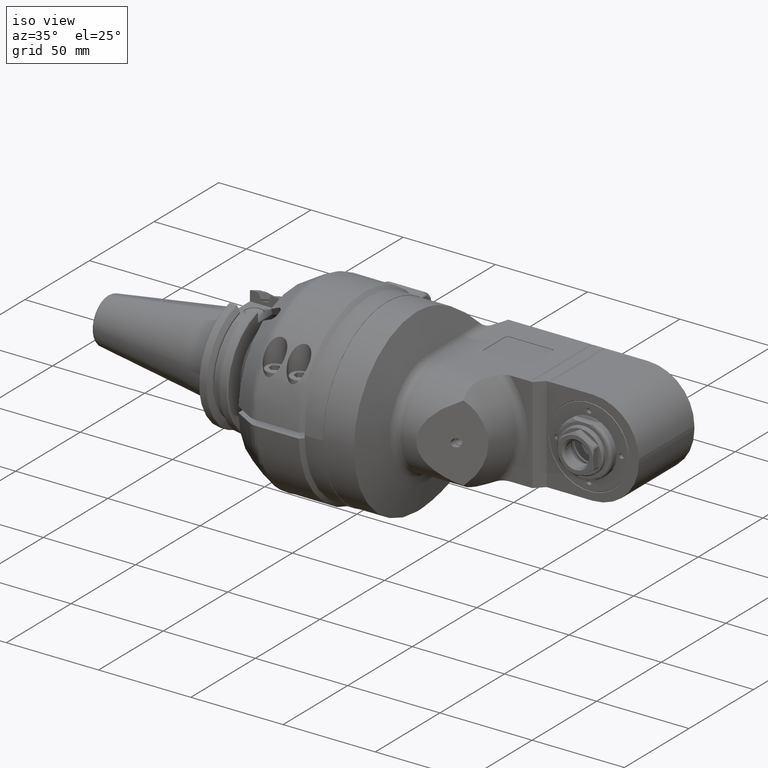
[diagram: clean part render]
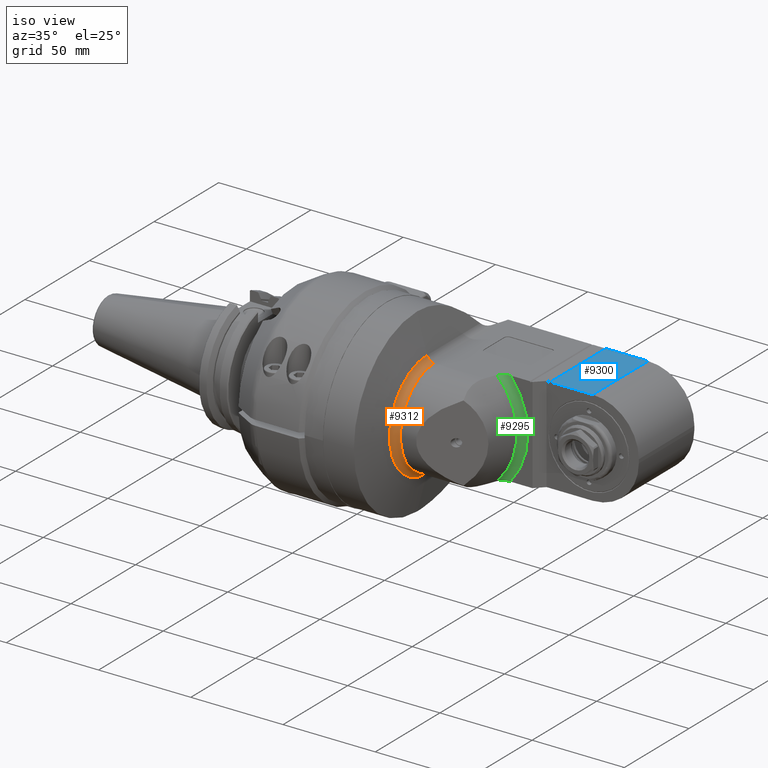
[diagram: same view with three faces highlighted in distinct colors, each labeled with its STEP entity id]
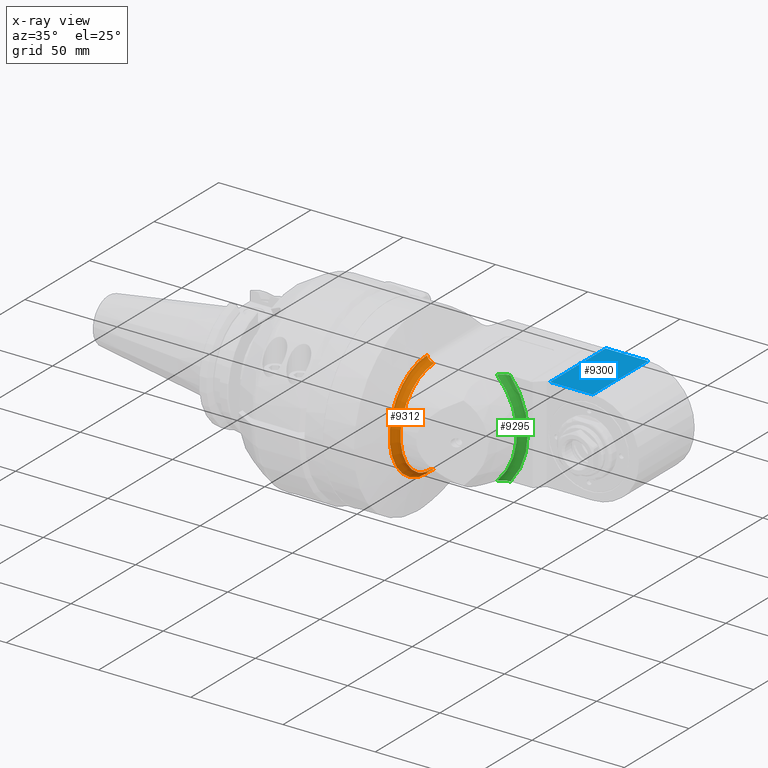
[diagram: x-ray of the same camera — body ghosted, the three highlighted faces saturated]
A machine part, iso view with three faces highlighted in distinct colors.
The next image is the same camera in x-ray (body ghosted, the three faces saturated) — at least one of them is partly hidden behind the body in this view.
Their STEP definitions:

[orange] entity #9312 — the highlighted toroidal blend (fillet) surface has major radius 30 mm and minor (blend) radius 4 mm.
#165=TOROIDAL_SURFACE('',#10166,30.,4.);
#531=CIRCLE('',#10164,26.);
#532=CIRCLE('',#10167,4.);
#533=CIRCLE('',#10168,28.96472381959);
#534=CIRCLE('',#10169,4.);
#1258=FACE_OUTER_BOUND('',#1844,.T.);
#1844=EDGE_LOOP('',(#6430,#6431,#6432,#6433));
#3932=VERTEX_POINT('',#14292);
#3969=VERTEX_POINT('',#14405);
#3981=VERTEX_POINT('',#14461);
#3982=VERTEX_POINT('',#14463);
#4928=EDGE_CURVE('',#3932,#3969,#531,.T.);
#4930=EDGE_CURVE('',#3969,#3981,#532,.T.);
#4931=EDGE_CURVE('',#3981,#3982,#533,.T.);
#4932=EDGE_CURVE('',#3982,#3932,#534,.T.);
#6430=ORIENTED_EDGE('',*,*,#4928,.T.);
#6431=ORIENTED_EDGE('',*,*,#4930,.T.);
#6432=ORIENTED_EDGE('',*,*,#4931,.T.);
#6433=ORIENTED_EDGE('',*,*,#4932,.T.);
#9312=ADVANCED_FACE('',(#1258),#165,.F.);
#10164=AXIS2_PLACEMENT_3D('',#14458,#11488,#11489);
#10166=AXIS2_PLACEMENT_3D('',#14460,#11492,#11493);
#10167=AXIS2_PLACEMENT_3D('',#14462,#11494,#11495);
#10168=AXIS2_PLACEMENT_3D('',#14464,#11496,#11497);
#10169=AXIS2_PLACEMENT_3D('',#14465,#11498,#11499);
#11488=DIRECTION('center_axis',(-1.,0.,0.));
#11489=DIRECTION('ref_axis',(0.,-1.,0.));
#11492=DIRECTION('center_axis',(-1.,0.,0.));
#11493=DIRECTION('ref_axis',(0.,-1.,-1.22464679914735E-16));
#11494=DIRECTION('center_axis',(0.,1.,0.));
#11495=DIRECTION('ref_axis',(0.,0.,-1.));
#11496=DIRECTION('center_axis',(1.,0.,0.));
#11497=DIRECTION('ref_axis',(0.,0.,1.));
#11498=DIRECTION('center_axis',(0.,1.,0.));
#11499=DIRECTION('ref_axis',(-0.965925826289076,0.,0.258819045102493));
#14292=CARTESIAN_POINT('',(24.00000019522,0.,-26.));
#14405=CARTESIAN_POINT('',(24.00000019522,0.,26.));
#14458=CARTESIAN_POINT('Origin',(24.00000019522,0.,0.));
#14460=CARTESIAN_POINT('Origin',(24.00000019522,0.,0.));
#14461=CARTESIAN_POINT('',(20.13629689006,0.,28.96472381959));
#14462=CARTESIAN_POINT('Origin',(24.00000019522,-3.215626318717E-14,30.));
#14463=CARTESIAN_POINT('',(20.13629689006,0.,-28.96472381959));
#14464=CARTESIAN_POINT('Origin',(20.13629689006,0.,0.));
#14465=CARTESIAN_POINT('Origin',(24.00000019522,0.,-30.));

[blue] entity #9300 — the highlighted planar face has unit normal (0, 0, -1).
#973=PLANE('',#10141);
#1246=FACE_OUTER_BOUND('',#1830,.T.);
#1830=EDGE_LOOP('',(#6346,#6347,#6348,#6349));
#2598=LINE('',#14225,#3237);
#2621=LINE('',#14330,#3260);
#2622=LINE('',#14333,#3261);
#2623=LINE('',#14334,#3262);
#3237=VECTOR('',#11360,23.);
#3260=VECTOR('',#11415,43.);
#3261=VECTOR('',#11418,23.);
#3262=VECTOR('',#11419,43.);
#3917=VERTEX_POINT('',#14222);
#3918=VERTEX_POINT('',#14224);
#3946=VERTEX_POINT('',#14328);
#3947=VERTEX_POINT('',#14332);
#4845=EDGE_CURVE('',#3917,#3918,#2598,.T.);
#4881=EDGE_CURVE('',#3946,#3917,#2621,.T.);
#4882=EDGE_CURVE('',#3946,#3947,#2622,.T.);
#4883=EDGE_CURVE('',#3918,#3947,#2623,.T.);
#6346=ORIENTED_EDGE('',*,*,#4881,.F.);
#6347=ORIENTED_EDGE('',*,*,#4882,.T.);
#6348=ORIENTED_EDGE('',*,*,#4883,.F.);
#6349=ORIENTED_EDGE('',*,*,#4845,.F.);
#9300=ADVANCED_FACE('',(#1246),#973,.F.);
#10141=AXIS2_PLACEMENT_3D('',#14331,#11416,#11417);
#11360=DIRECTION('',(-1.,0.,0.));
#11415=DIRECTION('',(0.,-1.,0.));
#11416=DIRECTION('center_axis',(0.,0.,-1.));
#11417=DIRECTION('ref_axis',(1.,0.,0.));
#11418=DIRECTION('',(-1.,0.,0.));
#11419=DIRECTION('',(0.,1.,0.));
#14222=CARTESIAN_POINT('',(100.5,13.5,26.));
#14224=CARTESIAN_POINT('',(77.5,13.5,26.));
#14225=CARTESIAN_POINT('',(100.5,13.5,26.));
#14328=CARTESIAN_POINT('',(100.5,56.5,26.));
#14330=CARTESIAN_POINT('',(100.5,56.5,26.));
#14331=CARTESIAN_POINT('Origin',(20.7320512433,-59.7040024,26.));
#14332=CARTESIAN_POINT('',(77.5,56.5,26.));
#14333=CARTESIAN_POINT('',(100.5,56.5,26.));
#14334=CARTESIAN_POINT('',(77.5,13.5,26.));

[green] entity #9295 — the highlighted toroidal blend (fillet) surface has major radius 40.5 mm and minor (blend) radius 4 mm.
#72=B_SPLINE_CURVE_WITH_KNOTS('',3,(#14251,#14252,#14253,#14254,#14255,
#14256,#14257,#14258,#14259,#14260,#14261,#14262,#14263,#14264,#14265,#14266),
 .UNSPECIFIED.,.F.,.F.,(4,2,2,2,2,2,2,4),(-1.27557197889434,-1.24195141155016,
-1.16156772126569,-1.08118403098121,-0.984533971774266,-0.887883912567323,
-0.781258268734826,-0.674632624902328),.UNSPECIFIED.);
#73=B_SPLINE_CURVE_WITH_KNOTS('',3,(#14269,#14270,#14271,#14272,#14273,
#14274,#14275,#14276,#14277,#14278,#14279,#14280,#14281,#14282,#14283,#14284),
 .UNSPECIFIED.,.F.,.F.,(4,2,2,2,2,2,2,4),(0.674632624902328,0.781258268734826,
0.887883912567323,0.984533971774266,1.08118403098121,1.16156772126569,1.24195141155016,
1.27557197889588),.UNSPECIFIED.);
#164=TOROIDAL_SURFACE('',#10128,40.49999997084,4.);
#512=CIRCLE('',#10127,40.49999997084);
#513=CIRCLE('',#10129,36.63629666568);
#1241=FACE_OUTER_BOUND('',#1823,.T.);
#1823=EDGE_LOOP('',(#6311,#6312,#6313,#6314));
#3923=VERTEX_POINT('',#14238);
#3924=VERTEX_POINT('',#14239);
#3928=VERTEX_POINT('',#14250);
#3929=VERTEX_POINT('',#14267);
#4852=EDGE_CURVE('',#3923,#3924,#512,.T.);
#4858=EDGE_CURVE('',#3928,#3923,#72,.T.);
#4859=EDGE_CURVE('',#3928,#3929,#513,.T.);
#4860=EDGE_CURVE('',#3924,#3929,#73,.T.);
#6311=ORIENTED_EDGE('',*,*,#4852,.F.);
#6312=ORIENTED_EDGE('',*,*,#4858,.F.);
#6313=ORIENTED_EDGE('',*,*,#4859,.T.);
#6314=ORIENTED_EDGE('',*,*,#4860,.F.);
#9295=ADVANCED_FACE('',(#1241),#164,.F.);
#10127=AXIS2_PLACEMENT_3D('',#14240,#11371,#11372);
#10128=AXIS2_PLACEMENT_3D('',#14249,#11378,#11379);
#10129=AXIS2_PLACEMENT_3D('',#14268,#11380,#11381);
#11371=DIRECTION('center_axis',(0.,1.,0.));
#11372=DIRECTION('ref_axis',(0.766725310982047,0.,0.641975309104239));
#11378=DIRECTION('center_axis',(0.,1.,0.));
#11379=DIRECTION('ref_axis',(0.,0.,-1.));
#11380=DIRECTION('center_axis',(0.,1.,0.));
#11381=DIRECTION('ref_axis',(0.704524225609895,0.,0.709679938795495));
#14238=CARTESIAN_POINT('',(59.05237507241,9.,26.));
#14239=CARTESIAN_POINT('',(59.05237507241,9.,-26.));
#14240=CARTESIAN_POINT('Origin',(28.,9.,0.));
#14249=CARTESIAN_POINT('Origin',(28.,5.,0.));
#14250=CARTESIAN_POINT('',(53.811203551587,6.03527601928229,26.0000000275181));
#14251=CARTESIAN_POINT('Ctrl Pts',(53.8112035758055,6.03527601007138,26.));
#14252=CARTESIAN_POINT('Ctrl Pts',(53.8537056940103,6.14702790307175,26.));
#14253=CARTESIAN_POINT('Ctrl Pts',(53.9018546495173,6.25411102387672,26.));
#14254=CARTESIAN_POINT('Ctrl Pts',(54.0742896382707,6.59275089283478,26.));
#14255=CARTESIAN_POINT('Ctrl Pts',(54.2367307402839,6.83668764581211,26.));
#14256=CARTESIAN_POINT('Ctrl Pts',(54.6127954524565,7.2829228014637,26.));
#14257=CARTESIAN_POINT('Ctrl Pts',(54.8259759036185,7.48559448832665,26.));
#14258=CARTESIAN_POINT('Ctrl Pts',(55.2839845524947,7.85769775115947,26.));
#14259=CARTESIAN_POINT('Ctrl Pts',(55.5777420287483,8.05360356570677,26.));
#14260=CARTESIAN_POINT('Ctrl Pts',(56.1972978531519,8.38742471503764,26.));
#14261=CARTESIAN_POINT('Ctrl Pts',(56.522926381928,8.52565513037798,26.));
#14262=CARTESIAN_POINT('Ctrl Pts',(57.1637508409291,8.74580590178013,26.));
#14263=CARTESIAN_POINT('Ctrl Pts',(57.5413817006295,8.84334700917251,26.));
#14264=CARTESIAN_POINT('Ctrl Pts',(58.3079856201185,8.97043675898971,26.));
#14265=CARTESIAN_POINT('Ctrl Pts',(58.6969562596412,9.,26.));
#14266=CARTESIAN_POINT('Ctrl Pts',(59.0523750724166,9.,26.));
#14267=CARTESIAN_POINT('',(53.811203551579,6.03527601926784,-26.0000000275205));
#14268=CARTESIAN_POINT('Origin',(28.,6.03527618041,0.));
#14269=CARTESIAN_POINT('Ctrl Pts',(59.0523750724166,9.,-26.));
#14270=CARTESIAN_POINT('Ctrl Pts',(58.6969562596412,8.99999999999966,-26.));
#14271=CARTESIAN_POINT('Ctrl Pts',(58.3079856201185,8.97043675898971,-26.));
#14272=CARTESIAN_POINT('Ctrl Pts',(57.5413817006295,8.84334700917251,-26.));
#14273=CARTESIAN_POINT('Ctrl Pts',(57.1637508409291,8.74580590178013,-26.));
#14274=CARTESIAN_POINT('Ctrl Pts',(56.522926381928,8.52565513037798,-26.));
#14275=CARTESIAN_POINT('Ctrl Pts',(56.1972978531519,8.38742471503764,-26.));
#14276=CARTESIAN_POINT('Ctrl Pts',(55.5777420287483,8.05360356570677,-26.));
#14277=CARTESIAN_POINT('Ctrl Pts',(55.2839845524947,7.85769775115947,-26.));
#14278=CARTESIAN_POINT('Ctrl Pts',(54.8259759036185,7.48559448832665,-26.));
#14279=CARTESIAN_POINT('Ctrl Pts',(54.6127954524565,7.2829228014637,-26.));
#14280=CARTESIAN_POINT('Ctrl Pts',(54.2367307402839,6.83668764581211,-26.));
#14281=CARTESIAN_POINT('Ctrl Pts',(54.0742896382707,6.59275089283478,-26.));
#14282=CARTESIAN_POINT('Ctrl Pts',(53.901854649515,6.25411102387217,-26.));
#14283=CARTESIAN_POINT('Ctrl Pts',(53.8537056940059,6.14702790306199,-26.));
#14284=CARTESIAN_POINT('Ctrl Pts',(53.8112035757997,6.0352760100561,-26.));